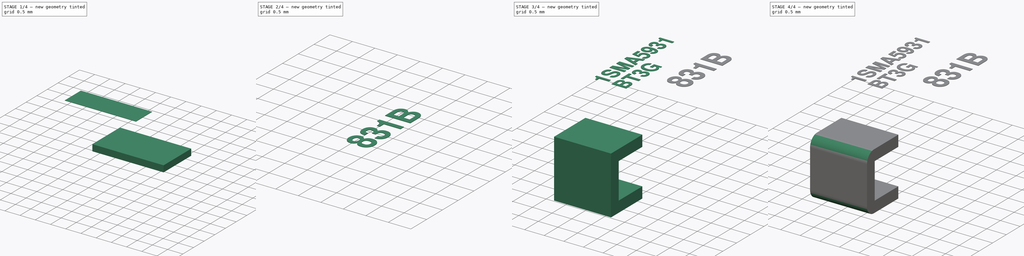
[diagram: build sequence overview — one tinted view per stage of 4, left to right]
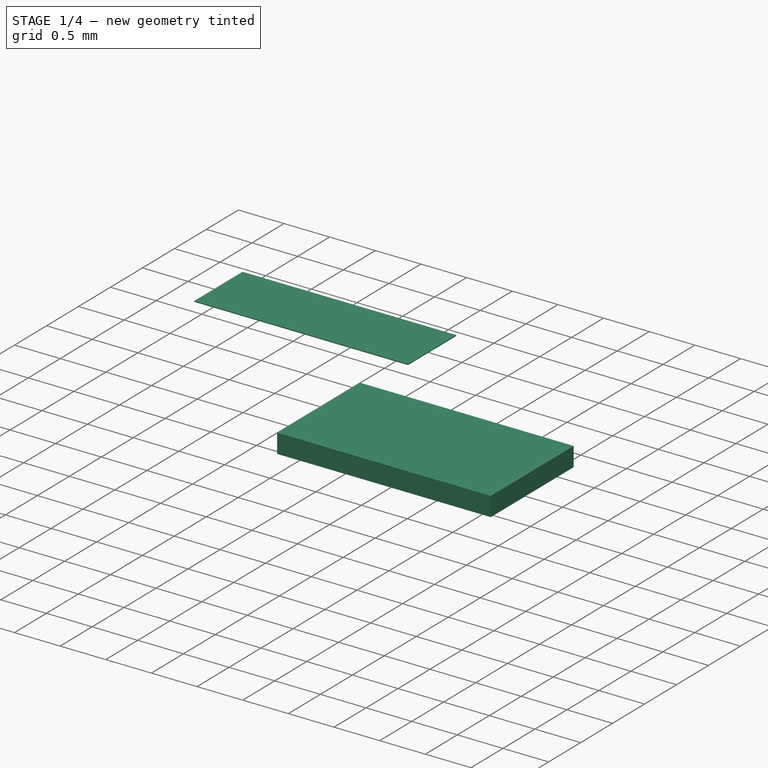
[diagram: stage 1 of 4 — iso view after this stage's code; geometry added in this stage tinted green]
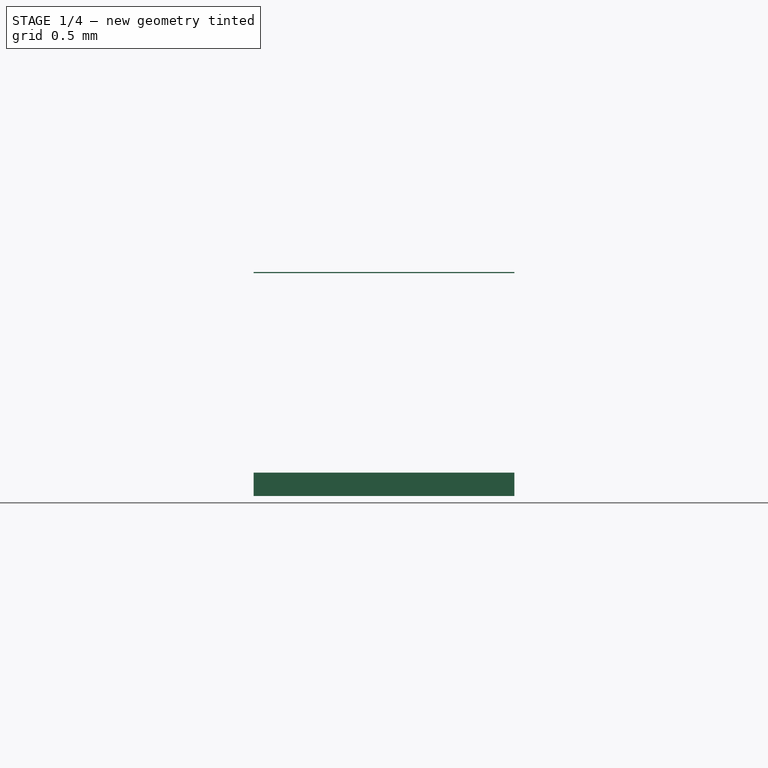
[diagram: stage 1 of 4 — front view after this stage's code; geometry added in this stage tinted green]
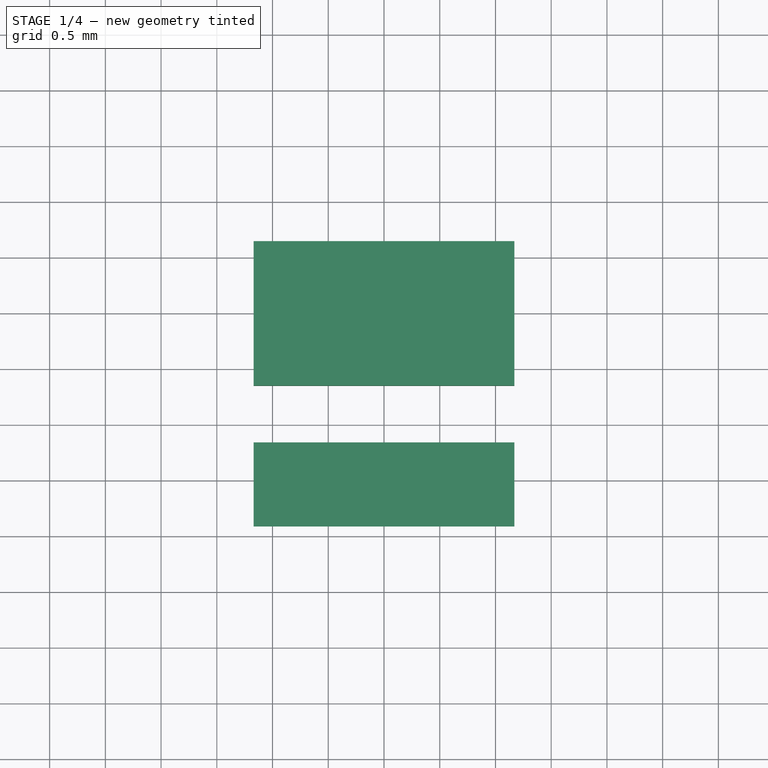
[diagram: stage 1 of 4 — top view after this stage's code; geometry added in this stage tinted green]
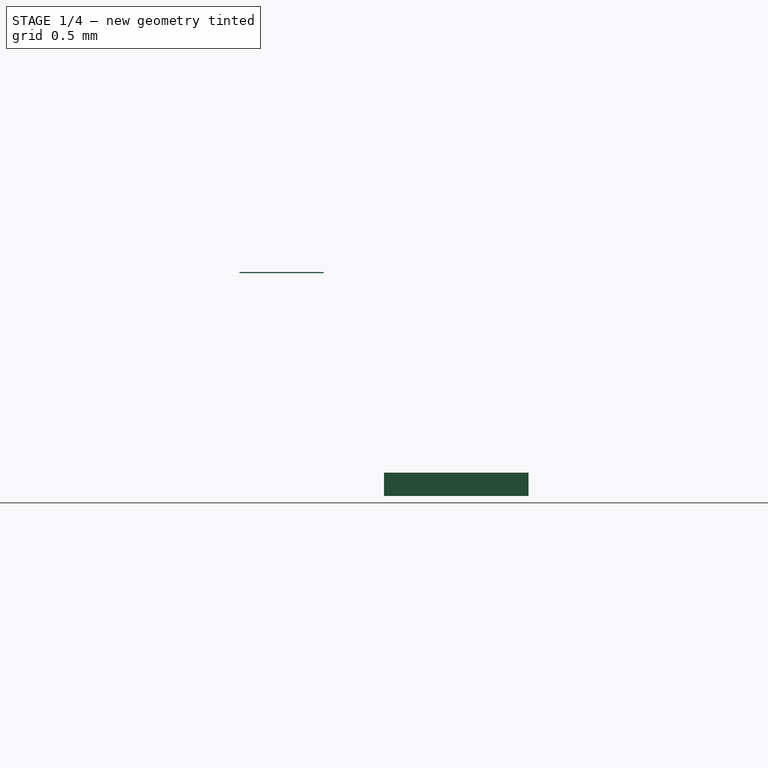
[diagram: stage 1 of 4 — right view after this stage's code; geometry added in this stage tinted green]
FCSTD DOCUMENT  (FreeCAD 0.19R16945 (Git))
Label: SMA
License: All rights reserved
LicenseURL: http://en.wikipedia.org/wiki/All_rights_reserved
objects: Sketcher::SketchObject×6, PartDesign::Body×4, PartDesign::Pad×3, Part::Part2DObjectPython×3, Part::Extrusion×3, PartDesign::AdditiveLoft×1, PartDesign::Fillet×1, PartDesign::FeatureBase×1
note: 26 computed .brp shape members not serialized (recipe doc carries the construction recipe); baked Part::Feature solids carry a one-line shape summary decoded from their .brp

FEATURE [Sketcher::SketchObject] Sketch
  MapMode = 5
  Placement = pos=(0,0,0) rot=(0.57735,0.57735,0.57735;2.0944rad)
  Support = -> [YZ_Plane]
  expr: Constraints[26] = 0.7 * 2.1
  expr: Constraints[2] = 5.21 / 2
  sketch-geometry (9):
    g0: LineSegment StartX=-2.605 StartY=0 StartZ=0 EndX=-2.605 EndY=1.47 EndZ=0
    g1: LineSegment StartX=-2.605 StartY=0 StartZ=0 EndX=-1.465 EndY=0 EndZ=0
    g2: LineSegment StartX=-1.465 StartY=0 StartZ=0 EndX=-1.465 EndY=0.28 EndZ=0
    g3: LineSegment StartX=-1.465 StartY=0.28 StartZ=0 EndX=-2.325 EndY=0.28 EndZ=0
    g4: LineSegment StartX=-2.325 StartY=0.28 StartZ=0 EndX=-2.325 EndY=1.19 EndZ=0
    g5: LineSegment StartX=-2.325 StartY=1.19 StartZ=0 EndX=-1.465 EndY=1.19 EndZ=0
    g6: LineSegment StartX=-1.465 StartY=1.19 StartZ=0 EndX=-1.465 EndY=1.47 EndZ=0
    g7: LineSegment StartX=-1.465 StartY=1.47 StartZ=0 EndX=-2.605 EndY=1.47 EndZ=0
    g8: LineSegment [constr] StartX=-2.325 StartY=1.71831 StartZ=0 EndX=-2.605 EndY=1.71831 EndZ=0
  constraints (27):
    c: PointOnObject(g0,g-1)
    c: Vertical(g0)
    c: DistanceX(g0,g-1) = 2.605
    c: Coincident(g1,g0)
    c: PointOnObject(g1,g-1)
    c: Coincident(g2,g1)
    c: Vertical(g2)
    c: Coincident(g3,g2)
    c: Horizontal(g3)
    c: Coincident(g4,g3)
    c: Vertical(g4)
    c: Coincident(g5,g4)
    c: Horizontal(g5)
    c: Coincident(g6,g5)
    c: Vertical(g6)
    c: Coincident(g7,g6)
    c: Coincident(g7,g0)
    c: Horizontal(g7)
    c: DistanceY(g2,g2) = 0.28
    c: Equal(g2,g6)
    c: PointOnObject(g8,g4)
    c: PointOnObject(g8,g0)
    c: Horizontal(g8)
    c: Equal(g8,g6)
    c: DistanceX(g1,g1) = 1.14
    c: Equal(g1,g7)
    c: DistanceY(g0,g0) = 1.47
FEATURE [Sketcher::SketchObject] Sketch001
  MapMode = 5
  Placement = pos=(0,0,0) rot=(0.57735,0.57735,0.57735;2.0944rad)
  Support = -> [YZ_Plane001]
  expr: Constraints[9] = 0.3 * 4.32
  expr: Constraints[10] = 0.1 * 2.1
  sketch-geometry (4):
    g0: LineSegment StartX=-0.648 StartY=0.1 StartZ=0 EndX=0.648 EndY=0.1 EndZ=0
    g1: LineSegment StartX=0.648 StartY=0.1 StartZ=0 EndX=0.648 EndY=0.31 EndZ=0
    g2: LineSegment StartX=0.648 StartY=0.31 StartZ=0 EndX=-0.648 EndY=0.31 EndZ=0
    g3: LineSegment StartX=-0.648 StartY=0.31 StartZ=0 EndX=-0.648 EndY=0.1 EndZ=0
  constraints (11):
    c: Coincident(g0,g1)
    c: Coincident(g1,g2)
    c: Coincident(g2,g3)
    c: Coincident(g3,g0)
    c: Horizontal(g2)
    c: Vertical(g1)
    c: Vertical(g3)
    c: Symmetric(g0,g0,g-2)
    c: DistanceY(g-1,g0) = 0.1
    c: DistanceX(g2,g2) = 1.296
    c: DistanceY(g3,g3) = 0.21
FEATURE [PartDesign::Pad] Pad
  Length = 2.34
  Length2 = 100
  Midplane = true
  Placement = pos=(0,0,0) rot=(0.57735,0.57735,0.57735;2.0944rad)
  Profile = -> Sketch001
  Type = 0
  expr: Length = 0.9 * 2.6
FEATURE [Sketcher::SketchObject] Sketch005
  AttachmentOffset = pos=(0,0,2.1) rot=(0,0,1;0rad)
  MapMode = 5
  Placement = pos=(0,0,2.1) rot=(0,0,1;0rad)
  Support = -> [XY_Plane003]
  expr: Constraints[9] = 0.9 * 4.32 / 2
  expr: AttachmentOffset.Base.z = 2.1
  expr: Constraints[8] = 0.9 * 2.6
  sketch-geometry (4):
    g0: LineSegment StartX=-1.17 StartY=-1.944 StartZ=0 EndX=1.17 EndY=-1.944 EndZ=0
    g1: LineSegment StartX=1.17 StartY=-1.944 StartZ=0 EndX=1.17 EndY=-1.18959 EndZ=0
    g2: LineSegment StartX=1.17 StartY=-1.18959 StartZ=0 EndX=-1.17 EndY=-1.18959 EndZ=0
    g3: LineSegment StartX=-1.17 StartY=-1.18959 StartZ=0 EndX=-1.17 EndY=-1.944 EndZ=0
  constraints (10):
    c: Coincident(g0,g1)
    c: Coincident(g1,g2)
    c: Coincident(g2,g3)
    c: Coincident(g3,g0)
    c: Horizontal(g0)
    c: Vertical(g1)
    c: Vertical(g3)
    c: Symmetric(g1,g2,g-2)
    c: DistanceX(g0,g0) = 2.34
    c: DistanceY(g0,g-1) = 1.944
FEATURE [PartDesign::Pad] Pad002
  Length = 0.01
  Length2 = 100
  Profile = -> Sketch005
  Type = 0
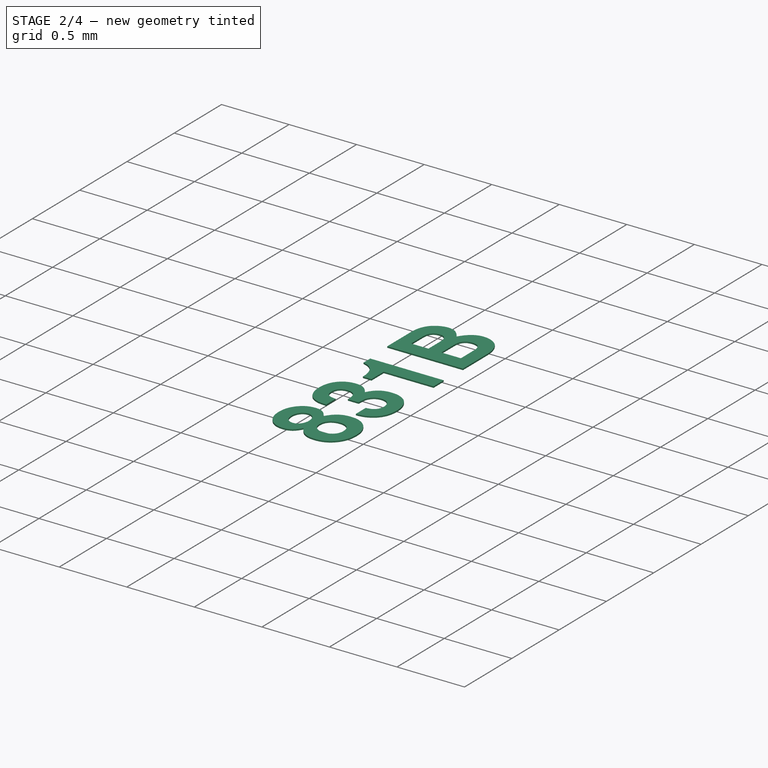
[diagram: stage 2 of 4 — iso view after this stage's code; geometry added in this stage tinted green]
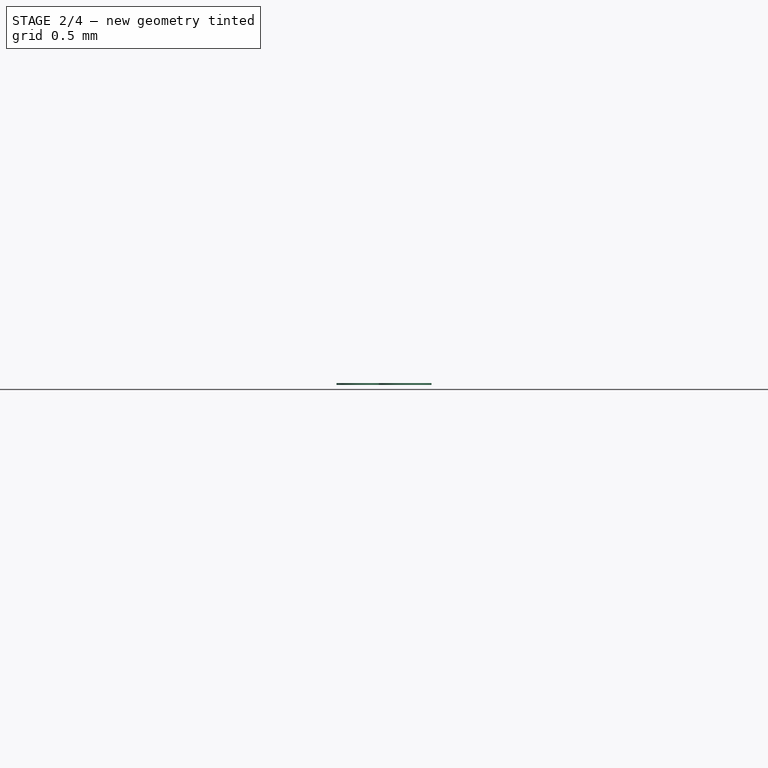
[diagram: stage 2 of 4 — front view after this stage's code; geometry added in this stage tinted green]
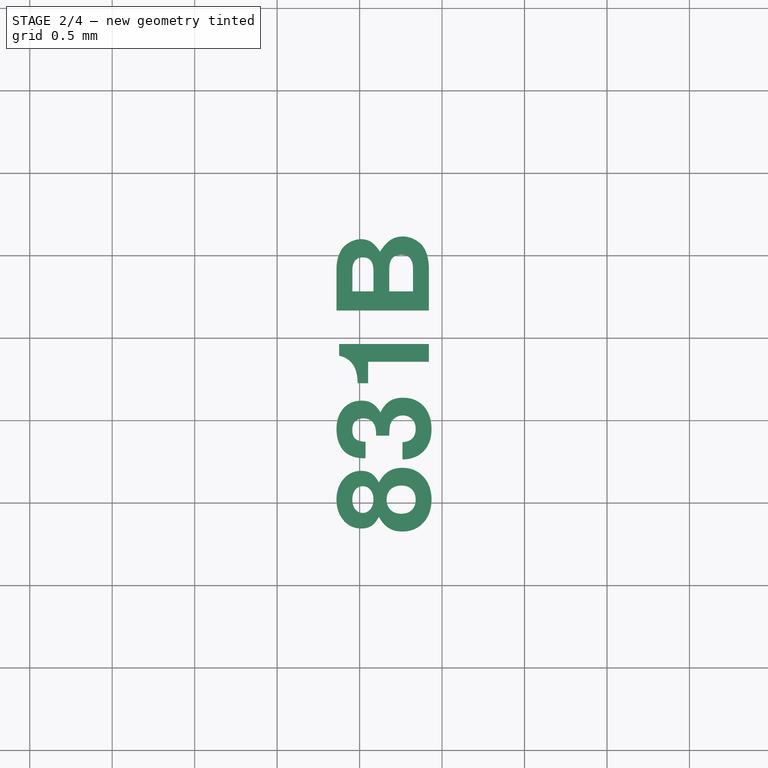
[diagram: stage 2 of 4 — top view after this stage's code; geometry added in this stage tinted green]
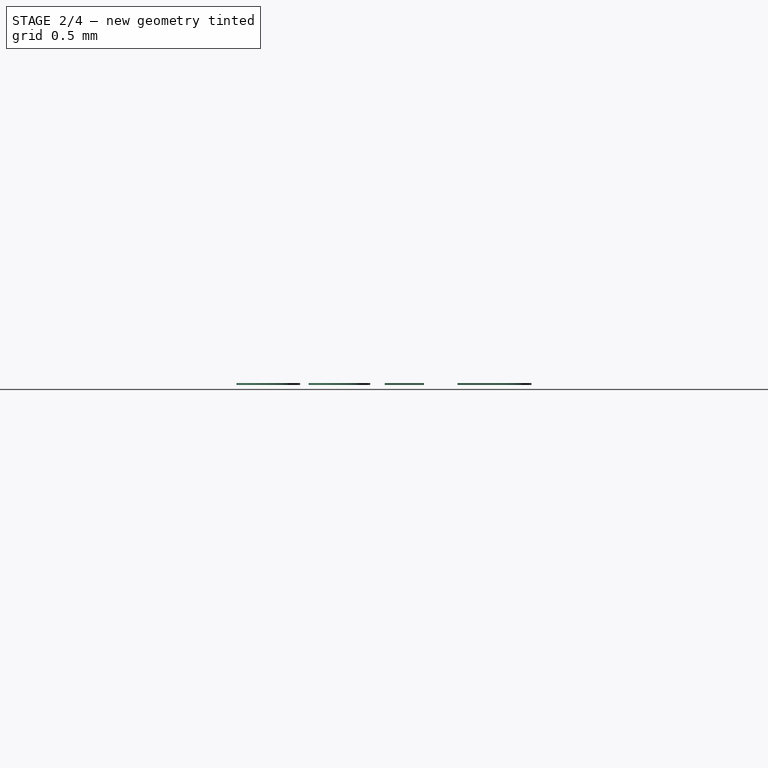
[diagram: stage 2 of 4 — right view after this stage's code; geometry added in this stage tinted green]
FEATURE [Sketcher::SketchObject] Sketch004  label="Top"
  AttachmentOffset = pos=(0,0,2.1) rot=(0,0,1;0rad)
  MapMode = 5
  Placement = pos=(0,0,2.1) rot=(0,0,1;0rad)
  Support = -> [XY_Plane001]
  expr: AttachmentOffset.Base.z = 2.1
  expr: Constraints[10] = Sketch003.Constraints[10]
  expr: Constraints[9] = Sketch003.Constraints[9]
  sketch-geometry (4):
    g0: LineSegment StartX=-1.17 StartY=-1.944 StartZ=0 EndX=1.17 EndY=-1.944 EndZ=0
    g1: LineSegment StartX=1.17 StartY=-1.944 StartZ=0 EndX=1.17 EndY=1.944 EndZ=0
    g2: LineSegment StartX=1.17 StartY=1.944 StartZ=0 EndX=-1.17 EndY=1.944 EndZ=0
    g3: LineSegment StartX=-1.17 StartY=1.944 StartZ=0 EndX=-1.17 EndY=-1.944 EndZ=0
  constraints (11):
    c: Coincident(g0,g1)
    c: Coincident(g1,g2)
    c: Coincident(g2,g3)
    c: Coincident(g3,g0)
    c: Horizontal(g0)
    c: Horizontal(g2)
    c: Vertical(g1)
    c: Vertical(g3)
    c: Symmetric(g1,g0,g-1)
    c: DistanceX(g2,g2) = 2.34
    c: DistanceY(g1,g1) = 3.888
FEATURE [PartDesign::AdditiveLoft] AdditiveLoft
  BaseFeature = -> Pad
  Closed = true
  Placement = pos=(0,0,0) rot=(0.57735,0.57735,0.57735;2.0944rad)
  Profile = -> Sketch003
  Ruled = true
  Sections = -> [Sketch002,Sketch004]
FEATURE [PartDesign::Body] Body003  label="PolarityMarking"
  Group = -> [Sketch005,Pad002]
  Origin = -> Origin003
  Tip = -> Pad002
FEATURE [Part::Part2DObjectPython] ShapeString002  # Draft 2D object (typed FeaturePython)
  AttachmentOffset = pos=(-1,-0.25,0) rot=(0,0,1;3.14159rad)
  FontFile = <userpath>/Desktop/GitHub/freecad-projects/00-fonts/FreeSansBold.ttf
  MapMode = 6
  Placement = pos=(0.92,-0.189589,2.1) rot=(0,0,1;1.5708rad)
  Size = 0.3
  String = 831B
  Support = -> [AdditiveLoft,Pad002]
  Tracking = 0
FEATURE [Part::Extrusion] Extrude002  label="Text_3"
  Base = -> ShapeString002
  Dir = (0,2e-16,1)
  DirMode = 2
  FaceMakerClass = Part::FaceMakerBullseye
  LengthFwd = 0.01
  LengthRev = 0
  Solid = false
  Symmetric = false
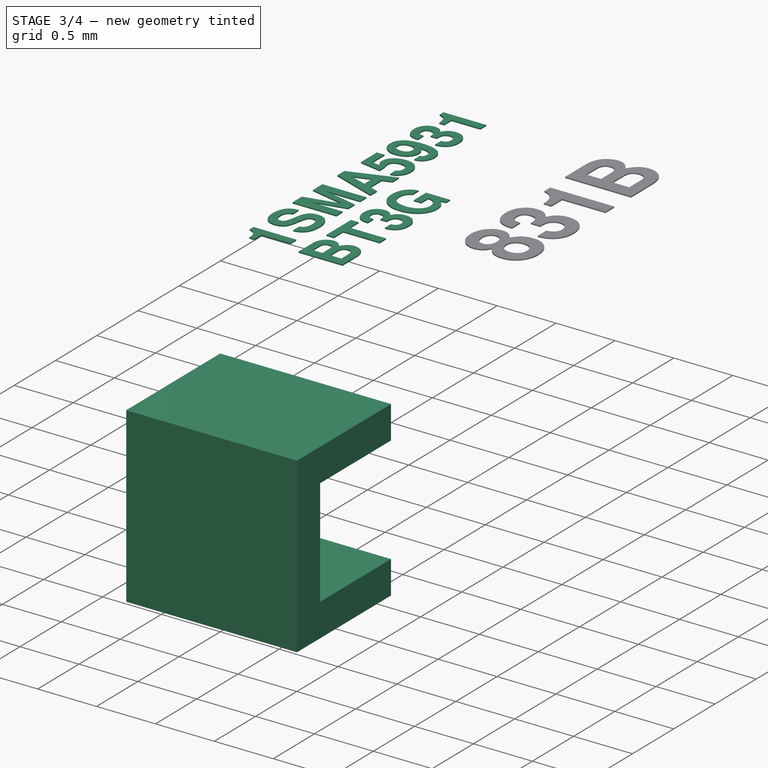
[diagram: stage 3 of 4 — iso view after this stage's code; geometry added in this stage tinted green]
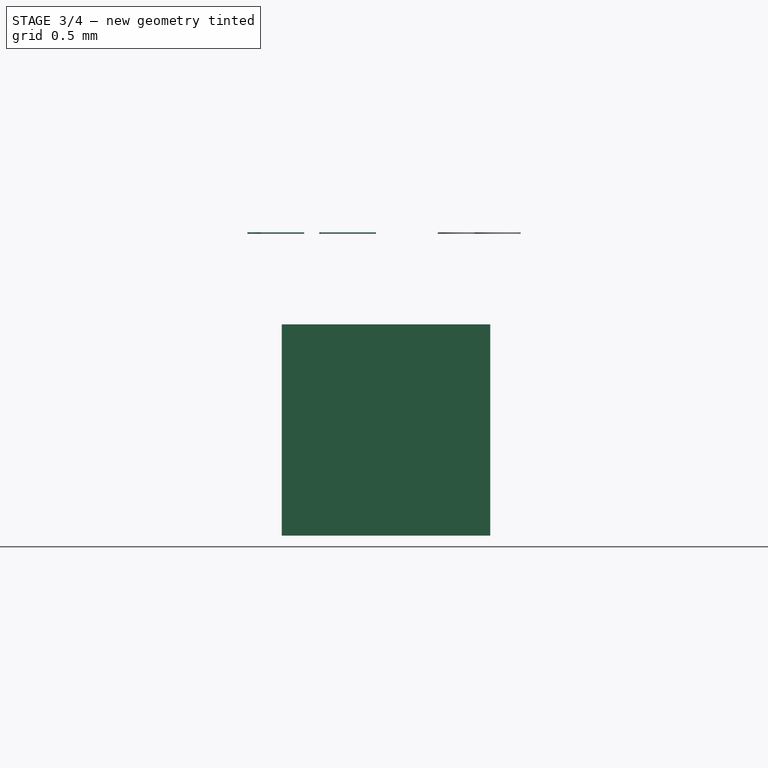
[diagram: stage 3 of 4 — front view after this stage's code; geometry added in this stage tinted green]
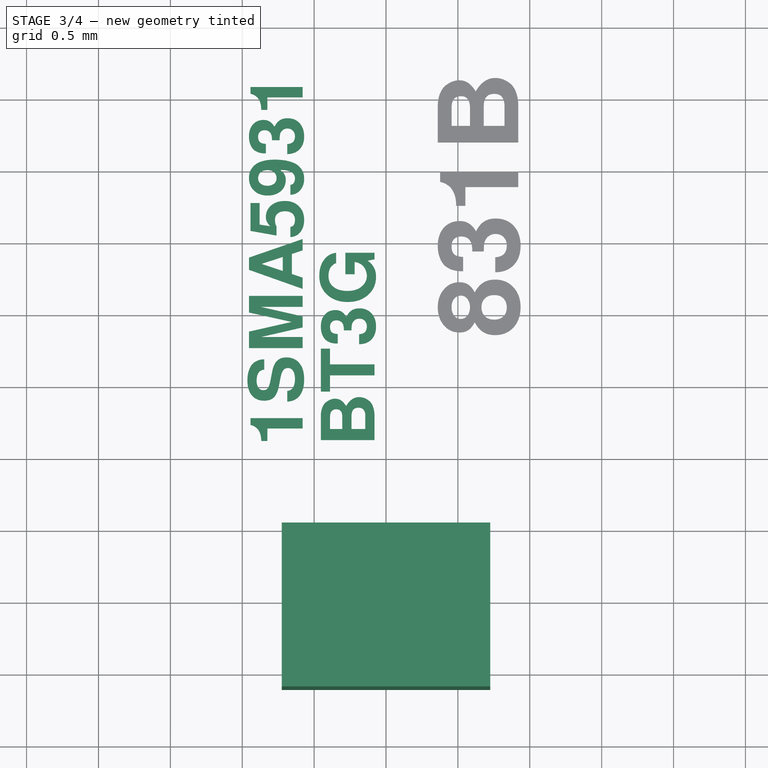
[diagram: stage 3 of 4 — top view after this stage's code; geometry added in this stage tinted green]
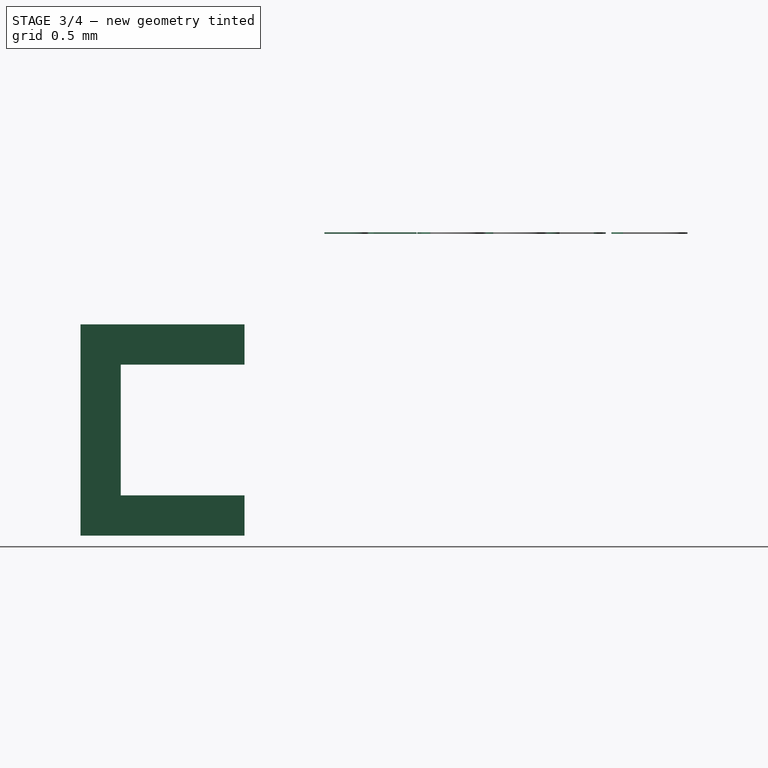
[diagram: stage 3 of 4 — right view after this stage's code; geometry added in this stage tinted green]
FEATURE [Sketcher::SketchObject] Sketch002  label="Middle"
  AttachmentOffset = pos=(0,0,1.47) rot=(0,0,1;0rad)
  MapMode = 5
  Placement = pos=(0,0,1.47) rot=(0,0,1;0rad)
  Support = -> [XY_Plane001]
  expr: AttachmentOffset.Base.z = 0.7 * 2.1
  sketch-geometry (4):
    g0: LineSegment StartX=-1.3 StartY=-2.16 StartZ=0 EndX=1.3 EndY=-2.16 EndZ=0
    g1: LineSegment StartX=1.3 StartY=-2.16 StartZ=0 EndX=1.3 EndY=2.16 EndZ=0
    g2: LineSegment StartX=1.3 StartY=2.16 StartZ=0 EndX=-1.3 EndY=2.16 EndZ=0
    g3: LineSegment StartX=-1.3 StartY=2.16 StartZ=0 EndX=-1.3 EndY=-2.16 EndZ=0
  constraints (11):
    c: Coincident(g0,g1)
    c: Coincident(g1,g2)
    c: Coincident(g2,g3)
    c: Coincident(g3,g0)
    c: Horizontal(g0)
    c: Horizontal(g2)
    c: Vertical(g1)
    c: Vertical(g3)
    c: Symmetric(g1,g0,g-1)
    c: DistanceX(g2,g2) = 2.6
    c: DistanceY(g1,g1) = 4.32
FEATURE [Sketcher::SketchObject] Sketch003  label="Bottom"
  AttachmentOffset = pos=(0,0,0.31) rot=(0,0,1;0rad)
  MapMode = 5
  Placement = pos=(0,0,0.31) rot=(0,0,1;0rad)
  Support = -> [XY_Plane001]
  expr: AttachmentOffset.Base.z = 0.1 + 0.1 * 2.1
  expr: Constraints[10] = 0.9 * 4.32
  expr: Constraints[9] = 0.9 * 2.6
  sketch-geometry (4):
    g0: LineSegment StartX=-1.17 StartY=-1.944 StartZ=0 EndX=1.17 EndY=-1.944 EndZ=0
    g1: LineSegment StartX=1.17 StartY=-1.944 StartZ=0 EndX=1.17 EndY=1.944 EndZ=0
    g2: LineSegment StartX=1.17 StartY=1.944 StartZ=0 EndX=-1.17 EndY=1.944 EndZ=0
    g3: LineSegment StartX=-1.17 StartY=1.944 StartZ=0 EndX=-1.17 EndY=-1.944 EndZ=0
  constraints (11):
    c: Coincident(g0,g1)
    c: Coincident(g1,g2)
    c: Coincident(g2,g3)
    c: Coincident(g3,g0)
    c: Horizontal(g0)
    c: Horizontal(g2)
    c: Vertical(g1)
    c: Vertical(g3)
    c: Symmetric(g1,g0,g-1)
    c: DistanceX(g2,g2) = 2.34
    c: DistanceY(g1,g1) = 3.888
FEATURE [PartDesign::Pad] Pad001
  Length = 1.45
  Length2 = 100
  Midplane = true
  Placement = pos=(0,0,0) rot=(0.57735,0.57735,0.57735;2.0944rad)
  Profile = -> Sketch
  Type = 0
FEATURE [PartDesign::Body] Body002  label="TerminalClone"
  BaseFeature = -> Body
  Group = -> [Clone]
  Origin = -> Origin002
  Placement = pos=(0,0,0) rot=(0,0,1;3.14159rad)
  Tip = -> Clone
FEATURE [Part::Part2DObjectPython] ShapeString  # Draft 2D object (typed FeaturePython)
  AttachmentOffset = pos=(-1,-1.75,0) rot=(0,0,1;3.14159rad)
  FontFile = <userpath>/Desktop/GitHub/freecad-projects/00-fonts/FreeSansBold.ttf
  MapMode = 6
  Placement = pos=(-0.58,-0.944,2.1) rot=(0,0,1;1.5708rad)
  Size = 0.2
  String = 1SMA5931
  Support = -> [AdditiveLoft]
  Tracking = 0
FEATURE [Part::Extrusion] Extrude  label="Text_1"
  Base = -> ShapeString
  Dir = (0,2e-16,1)
  DirMode = 2
  FaceMakerClass = Part::FaceMakerBullseye
  LengthFwd = 0.01
  LengthRev = 0
  Solid = false
  Symmetric = false
FEATURE [Part::Part2DObjectPython] ShapeString001  # Draft 2D object (typed FeaturePython)
  AttachmentOffset = pos=(-1,-1.25,0) rot=(0,0,1;3.14159rad)
  FontFile = <userpath>/Desktop/GitHub/freecad-projects/00-fonts/FreeSansBold.ttf
  MapMode = 6
  Placement = pos=(-0.08,-0.944,2.1) rot=(0,0,1;1.5708rad)
  Size = 0.2
  String = BT3G
  Support = -> [AdditiveLoft]
  Tracking = 0
FEATURE [Part::Extrusion] Extrude001  label="Text_2"
  Base = -> ShapeString001
  Dir = (-1e-16,3e-16,1)
  DirMode = 2
  FaceMakerClass = Part::FaceMakerBullseye
  LengthFwd = 0.01
  LengthRev = 0
  Solid = false
  Symmetric = false
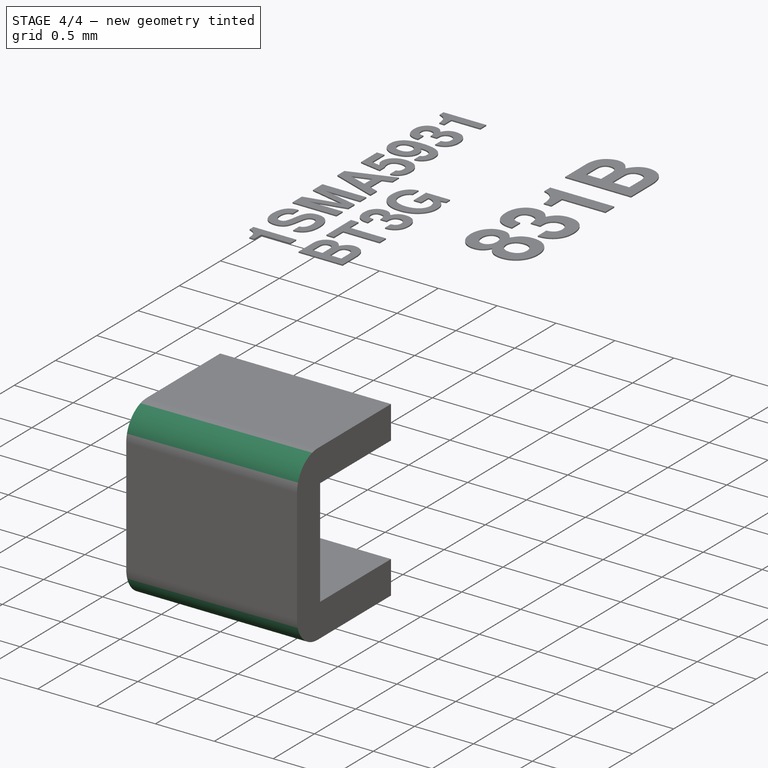
[diagram: stage 4 of 4 — iso view after this stage's code; geometry added in this stage tinted green]
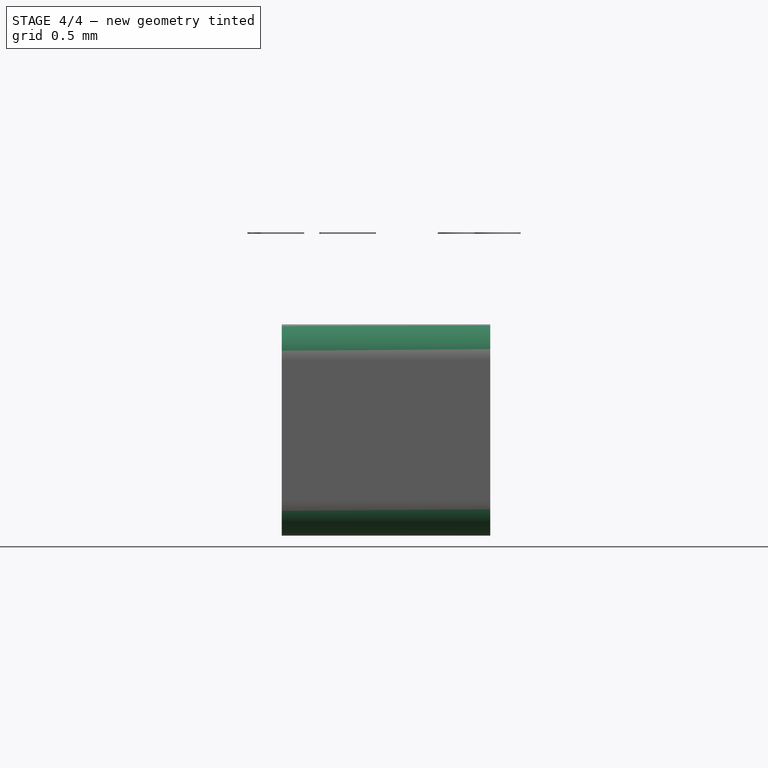
[diagram: stage 4 of 4 — front view after this stage's code; geometry added in this stage tinted green]
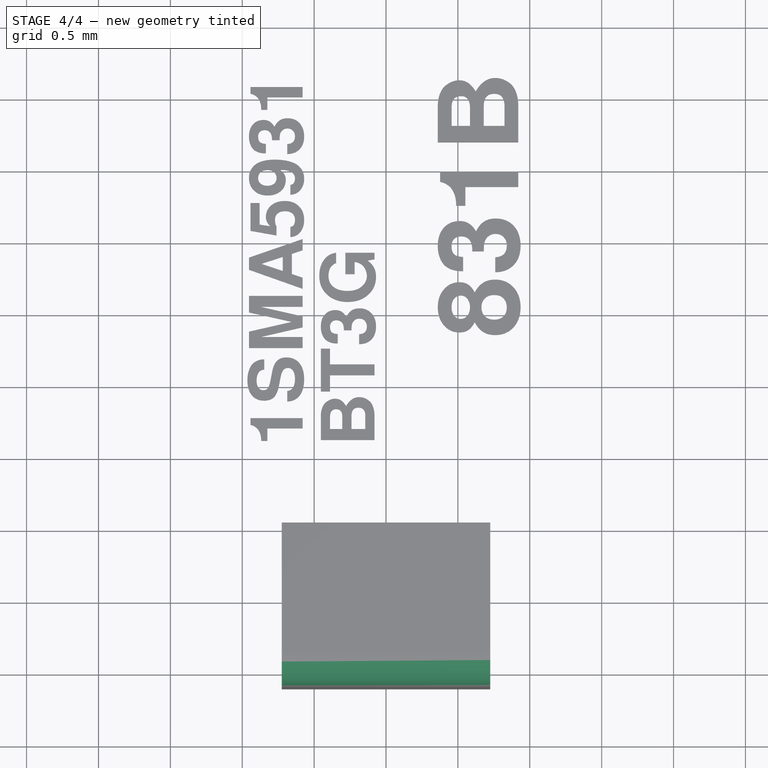
[diagram: stage 4 of 4 — top view after this stage's code; geometry added in this stage tinted green]
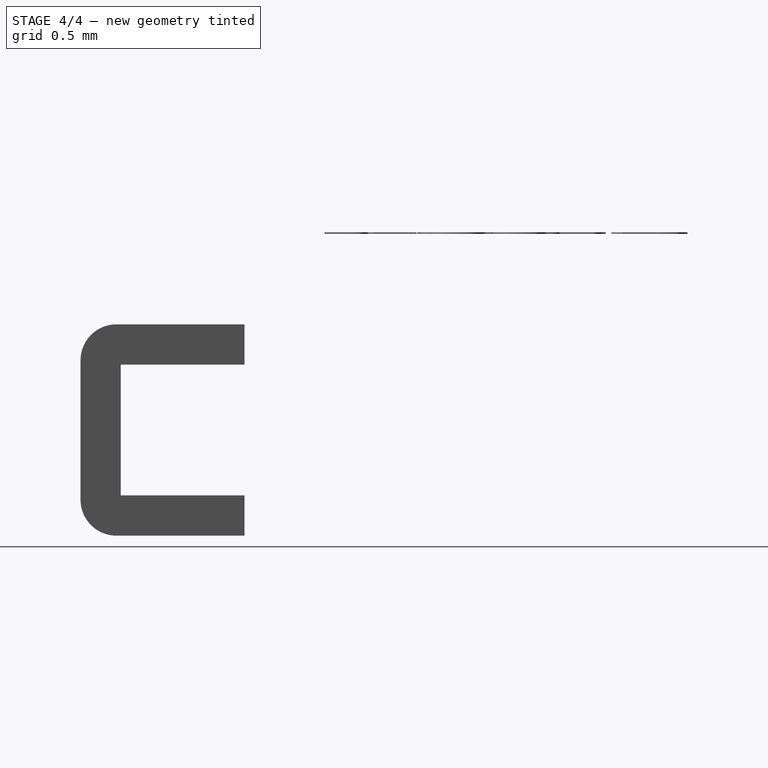
[diagram: stage 4 of 4 — right view after this stage's code; geometry added in this stage tinted green]
FEATURE [PartDesign::Body] Body001  label="Package"
  Group = -> [Sketch001,Pad,Sketch002,Sketch003,Sketch004,AdditiveLoft]
  Origin = -> Origin001
  Tip = -> AdditiveLoft
FEATURE [PartDesign::Fillet] Fillet
  Base = -> Pad001 [Edge2,Edge1]
  BaseFeature = -> Pad001
  Placement = pos=(0,0,0) rot=(0.57735,0.57735,0.57735;2.0944rad)
  Radius = 0.25
FEATURE [PartDesign::Body] Body  label="Terminal"
  Group = -> [Sketch,Pad001,Fillet]
  Origin = -> Origin
  Tip = -> Fillet
FEATURE [PartDesign::FeatureBase] Clone
  BaseFeature = -> Body
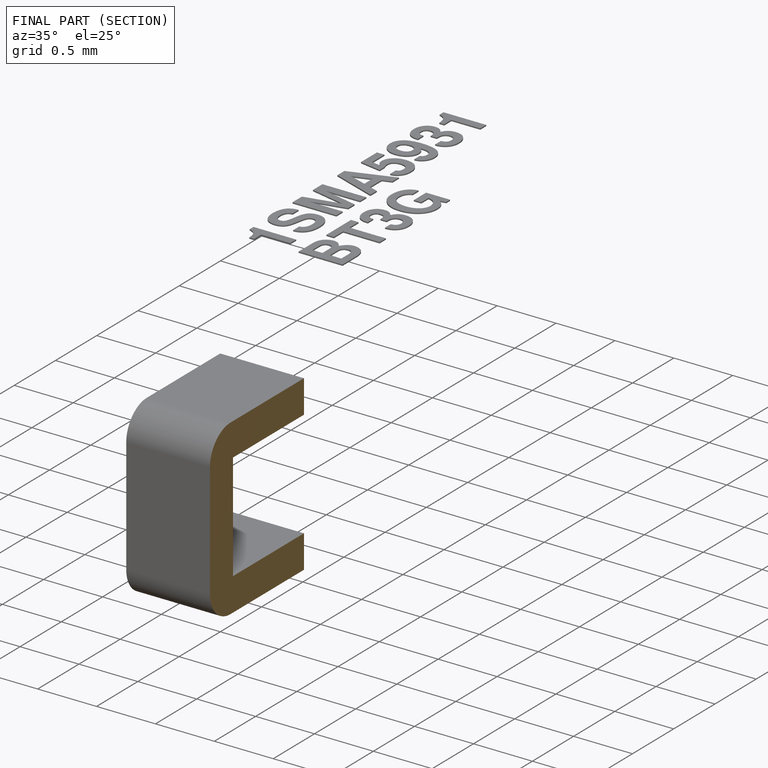
[diagram: finished part — half-section view (interior)]
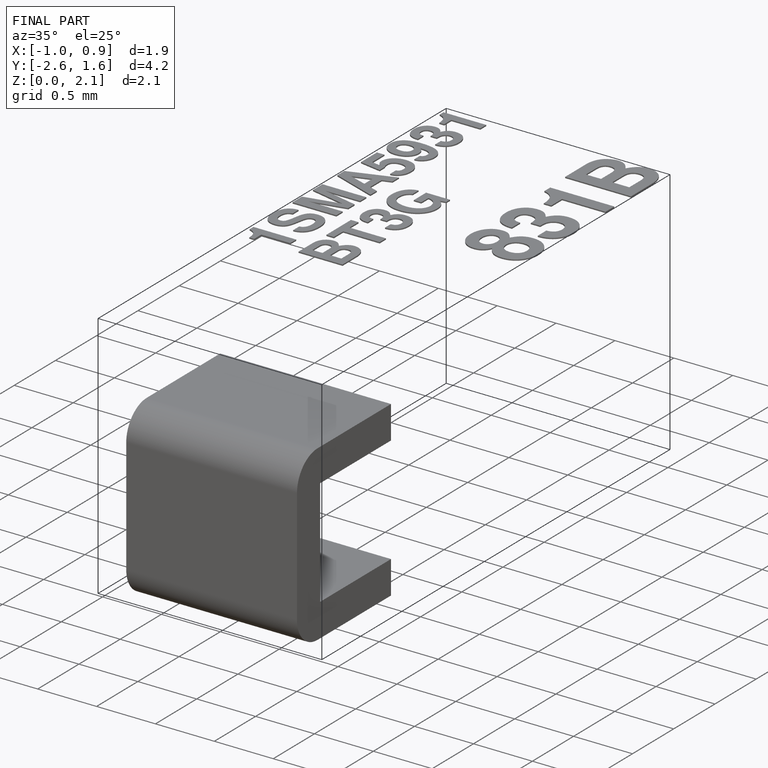
[diagram: finished part — iso view with bounding-box wireframe]
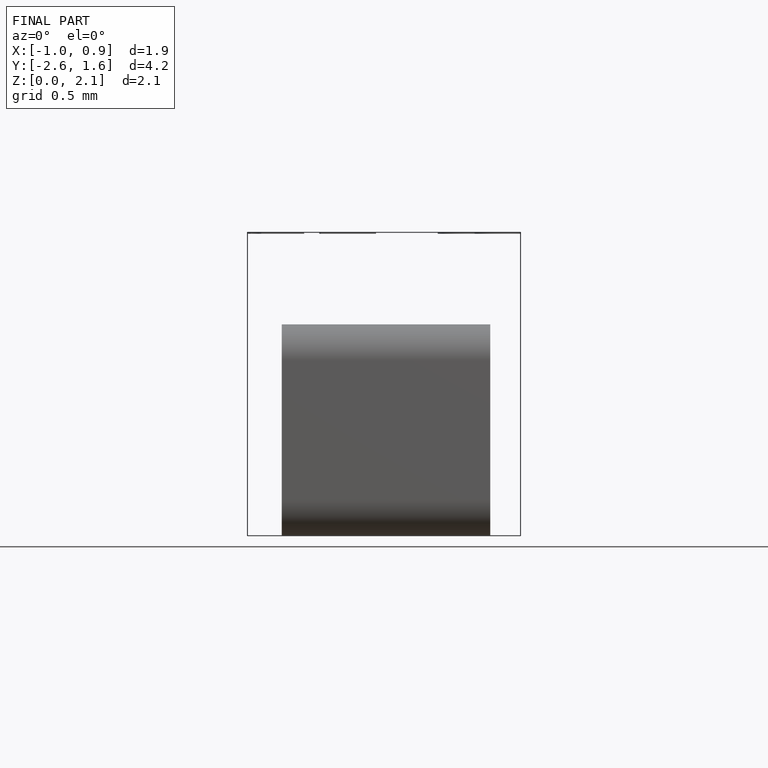
[diagram: finished part — front view with bounding-box wireframe]
